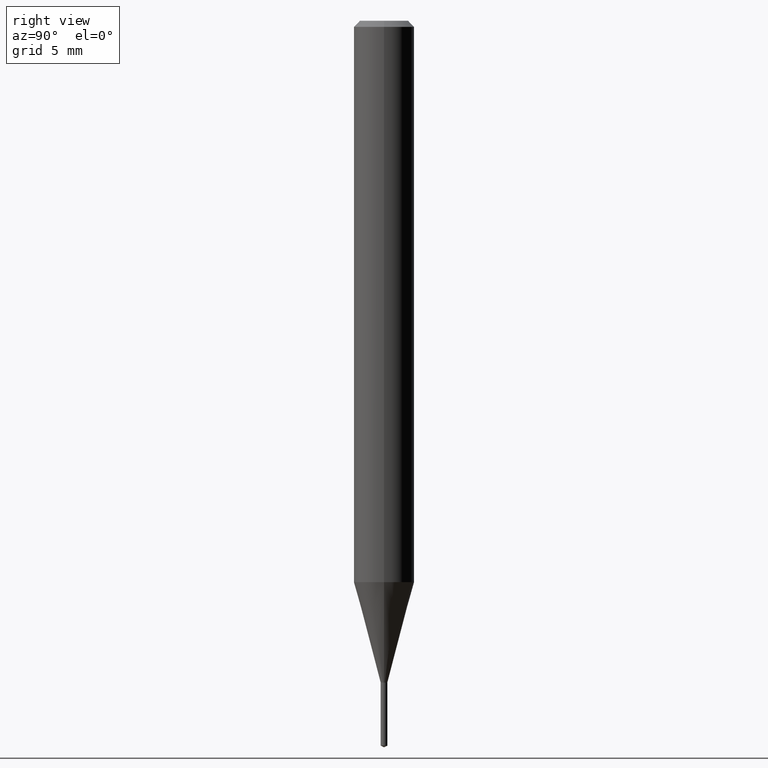
[diagram: clean part render]
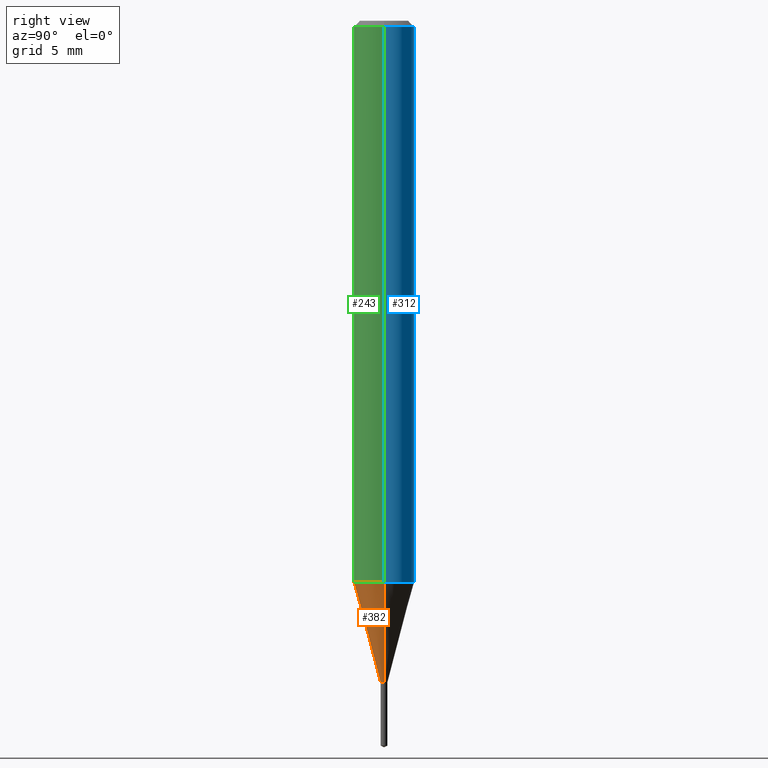
[diagram: same view with three faces highlighted in distinct colors, each labeled with its STEP entity id]
A machine part, right view with three faces highlighted in distinct colors.
Their STEP definitions:

[orange] entity #382 — the highlighted conical surface has half-angle 15 deg.
#3 = CARTESIAN_POINT ( 'NONE',  ( 3.341977670532607904E-29, -4.771458397663042881E-15, -1.366600000000000037 ) ) ;
#11 = CIRCLE ( 'NONE', #220, 0.06250000000000013878 ) ;
#21 = CARTESIAN_POINT ( 'NONE',  ( -0.006899999999999999883, -4.722430948895596634E-15, -1.366600000000000037 ) ) ;
#36 = DIRECTION ( 'NONE',  ( -2.445468806185136597E-29, 3.491481338843145583E-15, 1.000000000000000000 ) ) ;
#37 = ORIENTED_EDGE ( 'NONE', *, *, #323, .T. ) ;
#75 = ORIENTED_EDGE ( 'NONE', *, *, #199, .F. ) ;
#87 = VERTEX_POINT ( 'NONE', #412 ) ;
#117 = AXIS2_PLACEMENT_3D ( 'NONE', #223, #36, #406 ) ;
#137 = EDGE_CURVE ( 'NONE', #324, #321, #288, .T. ) ;
#144 = VERTEX_POINT ( 'NONE', #314 ) ;
#169 = EDGE_CURVE ( 'NONE', #324, #144, #259, .T. ) ;
#170 = ORIENTED_EDGE ( 'NONE', *, *, #169, .T. ) ;
#172 = ORIENTED_EDGE ( 'NONE', *, *, #137, .F. ) ;
#176 = DIRECTION ( 'NONE',  ( 1.000000000000000000, -6.982962677686262766E-15, 0.000000000000000000 ) ) ;
#194 = CARTESIAN_POINT ( 'NONE',  ( -0.06250000000000013878, -3.602879740099588099E-15, -1.159097975099176336 ) ) ;
#199 = EDGE_CURVE ( 'NONE', #321, #87, #11, .T. ) ;
#202 = CONICAL_SURFACE ( 'NONE', #377, 0.006899999999999999883, 0.2617993877991570129 ) ;
#220 = AXIS2_PLACEMENT_3D ( 'NONE', #261, #332, #176 ) ;
#223 = CARTESIAN_POINT ( 'NONE',  ( 3.341977670532607904E-29, -4.771458397663042881E-15, -1.366600000000000037 ) ) ;
#234 = LINE ( 'NONE', #457, #356 ) ;
#238 = VECTOR ( 'NONE', #435, 39.37007874015748854 ) ;
#259 = CIRCLE ( 'NONE', #117, 0.006899999999999999883 ) ;
#261 = CARTESIAN_POINT ( 'NONE',  ( 2.834537941417392274E-29, -4.046968949949650715E-15, -1.159097975099176336 ) ) ;
#288 = LINE ( 'NONE', #21, #238 ) ;
#309 = DIRECTION ( 'NONE',  ( 0.2588190451025280114, 1.565188264969568522E-15, 0.9659258262890662028 ) ) ;
#314 = CARTESIAN_POINT ( 'NONE',  ( 0.006899999999999999883, -4.819640840139077957E-15, -1.366600000000000037 ) ) ;
#321 = VERTEX_POINT ( 'NONE', #194 ) ;
#323 = EDGE_CURVE ( 'NONE', #144, #87, #234, .T. ) ;
#324 = VERTEX_POINT ( 'NONE', #349 ) ;
#332 = DIRECTION ( 'NONE',  ( -2.445468806185136597E-29, 3.491481338843145583E-15, 1.000000000000000000 ) ) ;
#345 = DIRECTION ( 'NONE',  ( 1.000000000000000000, -6.982962677686234367E-15, 0.000000000000000000 ) ) ;
#349 = CARTESIAN_POINT ( 'NONE',  ( -0.006899999999999999883, -4.465632496423682021E-15, -1.366600000000000037 ) ) ;
#356 = VECTOR ( 'NONE', #309, 39.37007874015748854 ) ;
#377 = AXIS2_PLACEMENT_3D ( 'NONE', #3, #456, #345 ) ;
#382 = ADVANCED_FACE ( 'NONE', ( #386 ), #202, .T. ) ;
#386 = FACE_OUTER_BOUND ( 'NONE', #424, .T. ) ;
#406 = DIRECTION ( 'NONE',  ( 1.000000000000000000, -6.982962677686234367E-15, 0.000000000000000000 ) ) ;
#412 = CARTESIAN_POINT ( 'NONE',  ( 0.06250000000000013878, -4.483404117305043173E-15, -1.159097975099176336 ) ) ;
#424 = EDGE_LOOP ( 'NONE', ( #172, #170, #37, #75 ) ) ;
#435 = DIRECTION ( 'NONE',  ( -0.2588190451025280114, 5.211531920934590485E-15, 0.9659258262890662028 ) ) ;
#456 = DIRECTION ( 'NONE',  ( -2.445468806185136597E-29, 3.491481338843145583E-15, 1.000000000000000000 ) ) ;
#457 = CARTESIAN_POINT ( 'NONE',  ( 0.006899999999999999883, -4.819640840139077957E-15, -1.366600000000000037 ) ) ;

[blue] entity #312 — the highlighted cylindrical surface (edge-blend (fillet) strip) has radius 1.5875 mm, axis along (-0, 0, 1).
#16 = ORIENTED_EDGE ( 'NONE', *, *, #289, .T. ) ;
#42 = CYLINDRICAL_SURFACE ( 'NONE', #340, 0.06250000000000006939 ) ;
#49 = DIRECTION ( 'NONE',  ( -2.445468806185136597E-29, 3.491481338843145583E-15, 1.000000000000000000 ) ) ;
#54 = DIRECTION ( 'NONE',  ( -2.445468806185136877E-29, 3.491481338843145188E-15, 1.000000000000000000 ) ) ;
#56 = CARTESIAN_POINT ( 'NONE',  ( -0.06250000000000006939, 4.440892098500631092E-16, -3.074334431409319267E-30 ) ) ;
#59 = LINE ( 'NONE', #126, #477 ) ;
#63 = AXIS2_PLACEMENT_3D ( 'NONE', #138, #366, #173 ) ;
#78 = CARTESIAN_POINT ( 'NONE',  ( -0.06250000000000001388, -1.601217023492531536E-15, -0.01250000000000008570 ) ) ;
#86 = CARTESIAN_POINT ( 'NONE',  ( 0.06250000000000001388, -4.800786840909313294E-16, -0.01250000000000008570 ) ) ;
#87 = VERTEX_POINT ( 'NONE', #412 ) ;
#95 = EDGE_CURVE ( 'NONE', #163, #440, #98, .T. ) ;
#98 = CIRCLE ( 'NONE', #270, 0.06250000000000001388 ) ;
#113 = FACE_OUTER_BOUND ( 'NONE', #149, .T. ) ;
#126 = CARTESIAN_POINT ( 'NONE',  ( 0.06250000000000006939, -4.364351673553921624E-16, 3.047610484872463374E-30 ) ) ;
#138 = CARTESIAN_POINT ( 'NONE',  ( 2.834537941417392274E-29, -4.046968949949650715E-15, -1.159097975099176336 ) ) ;
#149 = EDGE_LOOP ( 'NONE', ( #16, #290, #317, #373 ) ) ;
#155 = DIRECTION ( 'NONE',  ( 1.000000000000000000, -6.982962677686266711E-15, 4.876176775795935793E-29 ) ) ;
#163 = VERTEX_POINT ( 'NONE', #86 ) ;
#173 = DIRECTION ( 'NONE',  ( 1.000000000000000000, -6.982962677686262766E-15, 0.000000000000000000 ) ) ;
#191 = DIRECTION ( 'NONE',  ( -2.445468806185136597E-29, 3.491481338843145583E-15, 1.000000000000000000 ) ) ;
#194 = CARTESIAN_POINT ( 'NONE',  ( -0.06250000000000013878, -3.602879740099588099E-15, -1.159097975099176336 ) ) ;
#224 = CARTESIAN_POINT ( 'NONE',  ( 3.056836007731441853E-31, -4.364351673553962300E-17, -0.01250000000000008570 ) ) ;
#231 = CARTESIAN_POINT ( 'NONE',  ( 0.000000000000000000, 0.000000000000000000, 0.000000000000000000 ) ) ;
#270 = AXIS2_PLACEMENT_3D ( 'NONE', #224, #191, #375 ) ;
#279 = CIRCLE ( 'NONE', #63, 0.06250000000000013878 ) ;
#289 = EDGE_CURVE ( 'NONE', #87, #321, #279, .T. ) ;
#290 = ORIENTED_EDGE ( 'NONE', *, *, #479, .T. ) ;
#312 = ADVANCED_FACE ( 'NONE', ( #113 ), #42, .T. ) ;
#317 = ORIENTED_EDGE ( 'NONE', *, *, #95, .F. ) ;
#321 = VERTEX_POINT ( 'NONE', #194 ) ;
#331 = VECTOR ( 'NONE', #459, 39.37007874015748143 ) ;
#340 = AXIS2_PLACEMENT_3D ( 'NONE', #231, #49, #155 ) ;
#366 = DIRECTION ( 'NONE',  ( -2.445468806185136597E-29, 3.491481338843145583E-15, 1.000000000000000000 ) ) ;
#373 = ORIENTED_EDGE ( 'NONE', *, *, #453, .F. ) ;
#375 = DIRECTION ( 'NONE',  ( 1.000000000000000000, -6.982962677686265922E-15, 0.000000000000000000 ) ) ;
#395 = LINE ( 'NONE', #56, #331 ) ;
#412 = CARTESIAN_POINT ( 'NONE',  ( 0.06250000000000013878, -4.483404117305043173E-15, -1.159097975099176336 ) ) ;
#440 = VERTEX_POINT ( 'NONE', #78 ) ;
#453 = EDGE_CURVE ( 'NONE', #87, #163, #59, .T. ) ;
#459 = DIRECTION ( 'NONE',  ( -2.445468806185136877E-29, 3.491481338843145188E-15, 1.000000000000000000 ) ) ;
#477 = VECTOR ( 'NONE', #54, 39.37007874015748143 ) ;
#479 = EDGE_CURVE ( 'NONE', #321, #440, #395, .T. ) ;

[green] entity #243 — the highlighted cylindrical surface (edge-blend (fillet) strip) has radius 1.5875 mm, axis along (-0, 0, 1).
#2 = ORIENTED_EDGE ( 'NONE', *, *, #479, .F. ) ;
#11 = CIRCLE ( 'NONE', #220, 0.06250000000000013878 ) ;
#48 = AXIS2_PLACEMENT_3D ( 'NONE', #298, #364, #404 ) ;
#54 = DIRECTION ( 'NONE',  ( -2.445468806185136877E-29, 3.491481338843145188E-15, 1.000000000000000000 ) ) ;
#56 = CARTESIAN_POINT ( 'NONE',  ( -0.06250000000000006939, 4.440892098500631092E-16, -3.074334431409319267E-30 ) ) ;
#59 = LINE ( 'NONE', #126, #477 ) ;
#70 = FACE_OUTER_BOUND ( 'NONE', #365, .T. ) ;
#77 = ORIENTED_EDGE ( 'NONE', *, *, #199, .T. ) ;
#78 = CARTESIAN_POINT ( 'NONE',  ( -0.06250000000000001388, -1.601217023492531536E-15, -0.01250000000000008570 ) ) ;
#86 = CARTESIAN_POINT ( 'NONE',  ( 0.06250000000000001388, -4.800786840909313294E-16, -0.01250000000000008570 ) ) ;
#87 = VERTEX_POINT ( 'NONE', #412 ) ;
#99 = CARTESIAN_POINT ( 'NONE',  ( 0.000000000000000000, 0.000000000000000000, 0.000000000000000000 ) ) ;
#104 = DIRECTION ( 'NONE',  ( 1.000000000000000000, -6.982962677686266711E-15, 4.876176775795935793E-29 ) ) ;
#126 = CARTESIAN_POINT ( 'NONE',  ( 0.06250000000000006939, -4.364351673553921624E-16, 3.047610484872463374E-30 ) ) ;
#163 = VERTEX_POINT ( 'NONE', #86 ) ;
#176 = DIRECTION ( 'NONE',  ( 1.000000000000000000, -6.982962677686262766E-15, 0.000000000000000000 ) ) ;
#194 = CARTESIAN_POINT ( 'NONE',  ( -0.06250000000000013878, -3.602879740099588099E-15, -1.159097975099176336 ) ) ;
#199 = EDGE_CURVE ( 'NONE', #321, #87, #11, .T. ) ;
#220 = AXIS2_PLACEMENT_3D ( 'NONE', #261, #332, #176 ) ;
#232 = CIRCLE ( 'NONE', #48, 0.06250000000000001388 ) ;
#243 = ADVANCED_FACE ( 'NONE', ( #70 ), #302, .T. ) ;
#244 = ORIENTED_EDGE ( 'NONE', *, *, #275, .F. ) ;
#261 = CARTESIAN_POINT ( 'NONE',  ( 2.834537941417392274E-29, -4.046968949949650715E-15, -1.159097975099176336 ) ) ;
#275 = EDGE_CURVE ( 'NONE', #440, #163, #232, .T. ) ;
#298 = CARTESIAN_POINT ( 'NONE',  ( 3.056836007731441853E-31, -4.364351673553962300E-17, -0.01250000000000008570 ) ) ;
#302 = CYLINDRICAL_SURFACE ( 'NONE', #447, 0.06250000000000006939 ) ;
#321 = VERTEX_POINT ( 'NONE', #194 ) ;
#331 = VECTOR ( 'NONE', #459, 39.37007874015748143 ) ;
#332 = DIRECTION ( 'NONE',  ( -2.445468806185136597E-29, 3.491481338843145583E-15, 1.000000000000000000 ) ) ;
#364 = DIRECTION ( 'NONE',  ( -2.445468806185136597E-29, 3.491481338843145583E-15, 1.000000000000000000 ) ) ;
#365 = EDGE_LOOP ( 'NONE', ( #2, #77, #394, #244 ) ) ;
#394 = ORIENTED_EDGE ( 'NONE', *, *, #453, .T. ) ;
#395 = LINE ( 'NONE', #56, #331 ) ;
#404 = DIRECTION ( 'NONE',  ( 1.000000000000000000, -6.982962677686265922E-15, 0.000000000000000000 ) ) ;
#412 = CARTESIAN_POINT ( 'NONE',  ( 0.06250000000000013878, -4.483404117305043173E-15, -1.159097975099176336 ) ) ;
#440 = VERTEX_POINT ( 'NONE', #78 ) ;
#447 = AXIS2_PLACEMENT_3D ( 'NONE', #99, #449, #104 ) ;
#449 = DIRECTION ( 'NONE',  ( -2.445468806185136597E-29, 3.491481338843145583E-15, 1.000000000000000000 ) ) ;
#453 = EDGE_CURVE ( 'NONE', #87, #163, #59, .T. ) ;
#459 = DIRECTION ( 'NONE',  ( -2.445468806185136877E-29, 3.491481338843145188E-15, 1.000000000000000000 ) ) ;
#477 = VECTOR ( 'NONE', #54, 39.37007874015748143 ) ;
#479 = EDGE_CURVE ( 'NONE', #321, #440, #395, .T. ) ;